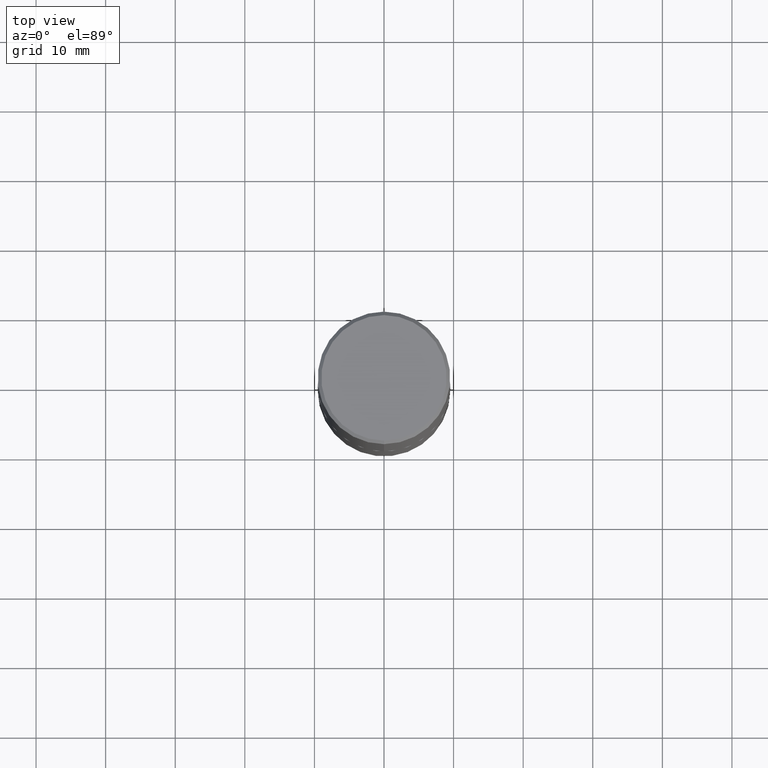
[diagram: clean part render]
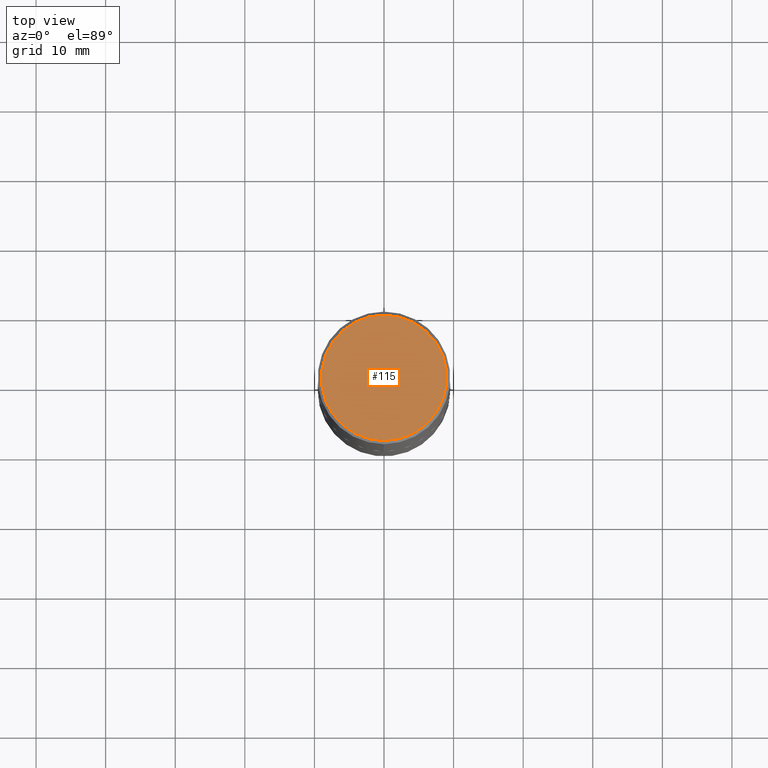
[diagram: same view with one face highlighted and labeled with its STEP entity id]
A machine part, top view. The second image highlights one B-rep face of the part: STEP entity #115.
In plain terms, the highlighted planar face has unit normal (0, -0, -1).
Its self-contained STEP definition (entity closure, byte-faithful):
#51 = DIRECTION ( 'NONE',  ( -6.982962677686266711E-15, -1.000000000000000000, 3.492762315123933556E-15 ) ) ;
#62 = DIRECTION ( 'NONE',  ( -6.982962677686266711E-15, -1.000000000000000000, 3.492762315123933556E-15 ) ) ;
#70 = DIRECTION ( 'NONE',  ( -2.444574305229161733E-29, 3.492762315123933951E-15, 1.000000000000000000 ) ) ;
#73 = DIRECTION ( 'NONE',  ( 6.982962677686265922E-15, 1.000000000000000000, -3.492762315123933951E-15 ) ) ;
#85 = CIRCLE ( 'NONE', #111, 0.3549999999999997602 ) ;
#104 = FACE_OUTER_BOUND ( 'NONE', #116, .T. ) ;
#111 = AXIS2_PLACEMENT_3D ( 'NONE', #185, #348, #62 ) ;
#115 = ADVANCED_FACE ( 'NONE', ( #104 ), #230, .F. ) ;
#116 = EDGE_LOOP ( 'NONE', ( #398, #251 ) ) ;
#185 = CARTESIAN_POINT ( 'NONE',  ( -6.584975069595768119E-45, 9.408489944411256093E-31, 2.693710334560058270E-16 ) ) ;
#203 = VERTEX_POINT ( 'NONE', #287 ) ;
#228 = AXIS2_PLACEMENT_3D ( 'NONE', #234, #70, #51 ) ;
#230 = PLANE ( 'NONE',  #416 ) ;
#234 = CARTESIAN_POINT ( 'NONE',  ( -6.584975069595768119E-45, 9.408489944411256093E-31, 2.693710334560058270E-16 ) ) ;
#241 = CARTESIAN_POINT ( 'NONE',  ( 2.478951750578623026E-15, 0.3549999999999997602, -1.105245105140992969E-15 ) ) ;
#251 = ORIENTED_EDGE ( 'NONE', *, *, #316, .T. ) ;
#254 = CIRCLE ( 'NONE', #228, 0.3549999999999997602 ) ;
#287 = CARTESIAN_POINT ( 'NONE',  ( -2.504081769186607821E-15, -0.3549999999999997602, 1.509301655325001413E-15 ) ) ;
#309 = CARTESIAN_POINT ( 'NONE',  ( 2.548781377355486718E-15, 0.3549999999999997602, -9.705595884129897592E-16 ) ) ;
#316 = EDGE_CURVE ( 'NONE', #203, #342, #85, .T. ) ;
#342 = VERTEX_POINT ( 'NONE', #309 ) ;
#348 = DIRECTION ( 'NONE',  ( -2.444574305229161733E-29, 3.492762315123933951E-15, 1.000000000000000000 ) ) ;
#350 = DIRECTION ( 'NONE',  ( 2.444574305229161733E-29, -3.492762315123933951E-15, -1.000000000000000000 ) ) ;
#398 = ORIENTED_EDGE ( 'NONE', *, *, #406, .T. ) ;
#406 = EDGE_CURVE ( 'NONE', #342, #203, #254, .T. ) ;
#416 = AXIS2_PLACEMENT_3D ( 'NONE', #241, #350, #73 ) ;